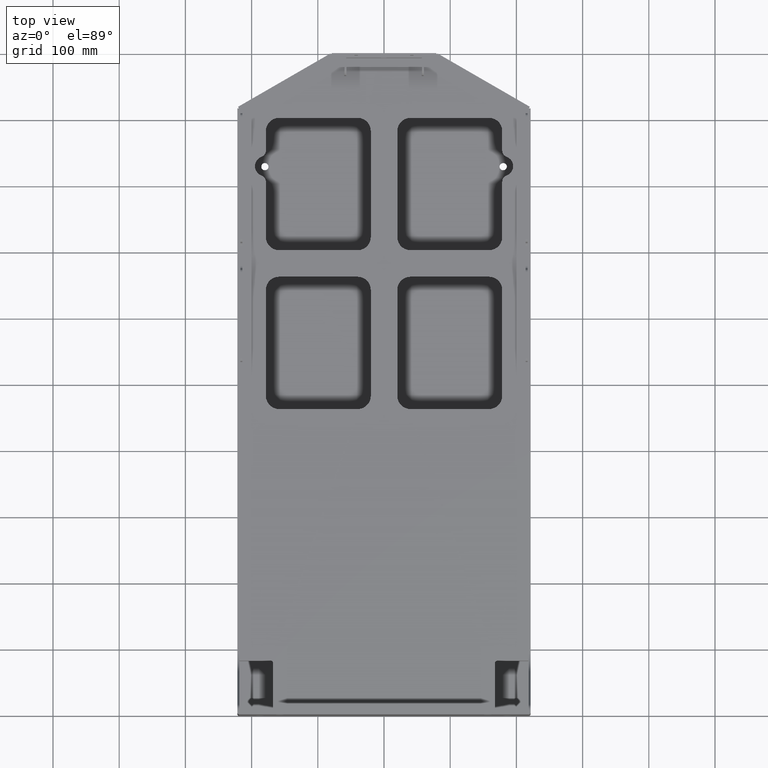
[diagram: clean part render]
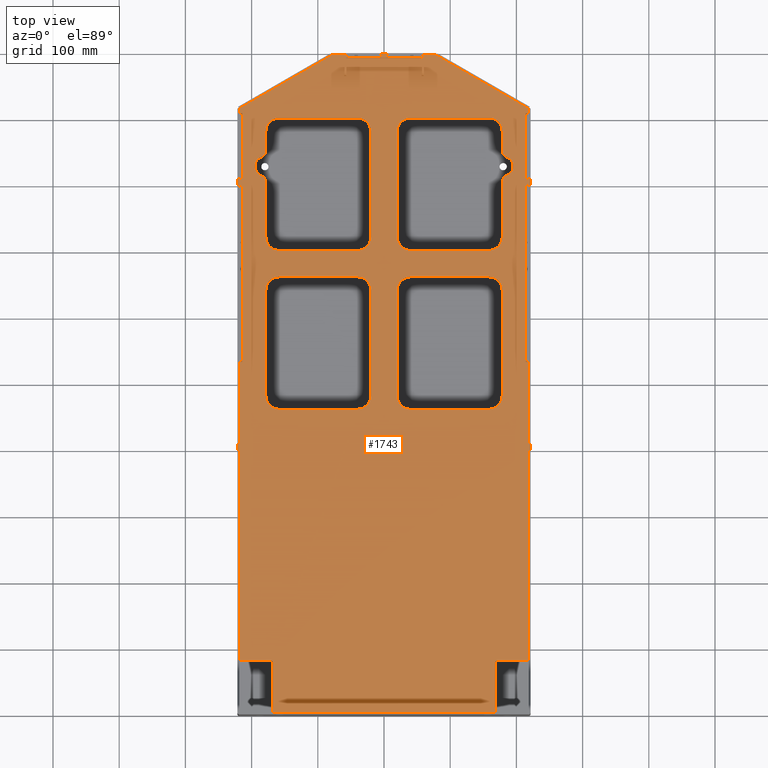
[diagram: same view with one face highlighted and labeled with its STEP entity id]
A machine part, top view. The second image highlights one B-rep face of the part: STEP entity #1743.
In plain terms, the highlighted planar face has unit normal (-0, 0, -1).
Its self-contained STEP definition (entity closure, byte-faithful):
#1364 = EDGE_CURVE ( 'NONE', #1447, #1418, #14542, .T. ) ;
#1418 = VERTEX_POINT ( 'NONE', #14664 ) ;
#1447 = VERTEX_POINT ( 'NONE', #14708 ) ;
#1679 = EDGE_CURVE ( 'NONE', #1700, #1704, #3367, .T. ) ;
#1680 = EDGE_CURVE ( 'NONE', #1681, #1704, #3440, .T. ) ;
#1681 = VERTEX_POINT ( 'NONE', #3364 ) ;
#1682 = ORIENTED_EDGE ( 'NONE', *, *, #1725, .F. ) ;
#1683 = ORIENTED_EDGE ( 'NONE', *, *, #1757, .T. ) ;
#1686 = ORIENTED_EDGE ( 'NONE', *, *, #1750, .F. ) ;
#1687 = VERTEX_POINT ( 'NONE', #3368 ) ;
#1695 = VERTEX_POINT ( 'NONE', #3405 ) ;
#1696 = VERTEX_POINT ( 'NONE', #3436 ) ;
#1699 = ORIENTED_EDGE ( 'NONE', *, *, #1364, .F. ) ;
#1700 = VERTEX_POINT ( 'NONE', #3407 ) ;
#1701 = EDGE_CURVE ( 'NONE', #1722, #1783, #3394, .T. ) ;
#1702 = ORIENTED_EDGE ( 'NONE', *, *, #1679, .T. ) ;
#1703 = VERTEX_POINT ( 'NONE', #3399 ) ;
#1704 = VERTEX_POINT ( 'NONE', #3398 ) ;
#1705 = EDGE_CURVE ( 'NONE', #1681, #1726, #3422, .T. ) ;
#1706 = ORIENTED_EDGE ( 'NONE', *, *, #1701, .F. ) ;
#1707 = EDGE_CURVE ( 'NONE', #1722, #1749, #3267, .T. ) ;
#1708 = EDGE_CURVE ( 'NONE', #1729, #1726, #3193, .T. ) ;
#1709 = ORIENTED_EDGE ( 'NONE', *, *, #1755, .F. ) ;
#1710 = EDGE_CURVE ( 'NONE', #1740, #1797, #3556, .T. ) ;
#1711 = ORIENTED_EDGE ( 'NONE', *, *, #1720, .F. ) ;
#1712 = VERTEX_POINT ( 'NONE', #3528 ) ;
#1713 = VERTEX_POINT ( 'NONE', #3465 ) ;
#1714 = EDGE_CURVE ( 'NONE', #1756, #1797, #3567, .T. ) ;
#1715 = EDGE_CURVE ( 'NONE', #1713, #1712, #3612, .T. ) ;
#1716 = EDGE_CURVE ( 'NONE', #1756, #1717, #3617, .T. ) ;
#1717 = VERTEX_POINT ( 'NONE', #3594 ) ;
#1718 = ORIENTED_EDGE ( 'NONE', *, *, #1724, .F. ) ;
#1719 = ORIENTED_EDGE ( 'NONE', *, *, #1716, .T. ) ;
#1720 = EDGE_CURVE ( 'NONE', #1713, #1717, #3613, .T. ) ;
#1721 = ORIENTED_EDGE ( 'NONE', *, *, #1727, .T. ) ;
#1722 = VERTEX_POINT ( 'NONE', #3619 ) ;
#1723 = EDGE_LOOP ( 'NONE', ( #1782, #1785, #1706, #1779, #1682, #1702, #1778, #1780, #1772, #1683, #1774, #1771, #1699 ) ) ;
#1724 = EDGE_CURVE ( 'NONE', #1781, #1712, #3572, .T. ) ;
#1725 = EDGE_CURVE ( 'NONE', #1700, #1749, #3553, .T. ) ;
#1726 = VERTEX_POINT ( 'NONE', #3555 ) ;
#1727 = EDGE_CURVE ( 'NONE', #1781, #1794, #3563, .T. ) ;
#1728 = EDGE_CURVE ( 'NONE', #1784, #1447, #3527, .T. ) ;
#1729 = VERTEX_POINT ( 'NONE', #3526 ) ;
#1740 = VERTEX_POINT ( 'NONE', #3559 ) ;
#1742 = ORIENTED_EDGE ( 'NONE', *, *, #1715, .T. ) ;
#1743 = ADVANCED_FACE ( 'NONE', ( #3521, #3508, #3503, #3498, #3497 ), #3504, .F. ) ;
#1745 = ORIENTED_EDGE ( 'NONE', *, *, #1747, .T. ) ;
#1746 = ORIENTED_EDGE ( 'NONE', *, *, #1748, .F. ) ;
#1747 = EDGE_CURVE ( 'NONE', #1687, #1695, #3502, .T. ) ;
#1748 = EDGE_CURVE ( 'NONE', #1687, #1794, #3456, .T. ) ;
#1749 = VERTEX_POINT ( 'NONE', #3512 ) ;
#1750 = EDGE_CURVE ( 'NONE', #1696, #1695, #3605, .T. ) ;
#1751 = ORIENTED_EDGE ( 'NONE', *, *, #1710, .T. ) ;
#1752 = ORIENTED_EDGE ( 'NONE', *, *, #1753, .T. ) ;
#1753 = EDGE_CURVE ( 'NONE', #1696, #1795, #3609, .T. ) ;
#1754 = ORIENTED_EDGE ( 'NONE', *, *, #1714, .F. ) ;
#1755 = EDGE_CURVE ( 'NONE', #1740, #1795, #3489, .T. ) ;
#1756 = VERTEX_POINT ( 'NONE', #3490 ) ;
#1757 = EDGE_CURVE ( 'NONE', #1729, #1703, #3450, .T. ) ;
#1759 = ORIENTED_EDGE ( 'NONE', *, *, #1823, .T. ) ;
#1760 = EDGE_CURVE ( 'NONE', #1819, #1876, #3470, .T. ) ;
#1761 = ORIENTED_EDGE ( 'NONE', *, *, #1770, .F. ) ;
#1762 = VERTEX_POINT ( 'NONE', #3475 ) ;
#1763 = VERTEX_POINT ( 'NONE', #3471 ) ;
#1764 = EDGE_CURVE ( 'NONE', #1876, #1875, #3549, .T. ) ;
#1765 = ORIENTED_EDGE ( 'NONE', *, *, #1766, .F. ) ;
#1766 = EDGE_CURVE ( 'NONE', #1762, #1763, #3545, .T. ) ;
#1767 = EDGE_CURVE ( 'NONE', #1875, #1850, #3541, .T. ) ;
#1768 = VERTEX_POINT ( 'NONE', #3550 ) ;
#1769 = ORIENTED_EDGE ( 'NONE', *, *, #1767, .T. ) ;
#1770 = EDGE_CURVE ( 'NONE', #1763, #1850, #3537, .T. ) ;
#1771 = ORIENTED_EDGE ( 'NONE', *, *, #1775, .T. ) ;
#1772 = ORIENTED_EDGE ( 'NONE', *, *, #1708, .F. ) ;
#1773 = EDGE_CURVE ( 'NONE', #1776, #1703, #3591, .T. ) ;
#1774 = ORIENTED_EDGE ( 'NONE', *, *, #1773, .F. ) ;
#1775 = EDGE_CURVE ( 'NONE', #1776, #1418, #3535, .T. ) ;
#1776 = VERTEX_POINT ( 'NONE', #3585 ) ;
#1778 = ORIENTED_EDGE ( 'NONE', *, *, #1680, .F. ) ;
#1779 = ORIENTED_EDGE ( 'NONE', *, *, #1707, .T. ) ;
#1780 = ORIENTED_EDGE ( 'NONE', *, *, #1705, .T. ) ;
#1781 = VERTEX_POINT ( 'NONE', #3587 ) ;
#1782 = ORIENTED_EDGE ( 'NONE', *, *, #1728, .F. ) ;
#1783 = VERTEX_POINT ( 'NONE', #3579 ) ;
#1784 = VERTEX_POINT ( 'NONE', #3577 ) ;
#1785 = ORIENTED_EDGE ( 'NONE', *, *, #1786, .T. ) ;
#1786 = EDGE_CURVE ( 'NONE', #1784, #1783, #3416, .T. ) ;
#1787 = EDGE_LOOP ( 'NONE', ( #1870, #1835, #1867, #1863, #1862, #1802, #1806, #1829 ) ) ;
#1791 = EDGE_LOOP ( 'NONE', ( #1746, #1745, #1686, #1752, #1709, #1751, #1754, #1719, #1711, #1742, #1718, #1721 ) ) ;
#1794 = VERTEX_POINT ( 'NONE', #3652 ) ;
#1795 = VERTEX_POINT ( 'NONE', #3751 ) ;
#1797 = VERTEX_POINT ( 'NONE', #3688 ) ;
#1798 = VERTEX_POINT ( 'NONE', #3734 ) ;
#1799 = VERTEX_POINT ( 'NONE', #3769 ) ;
#1800 = EDGE_CURVE ( 'NONE', #1799, #1798, #3771, .T. ) ;
#1801 = ORIENTED_EDGE ( 'NONE', *, *, #1852, .F. ) ;
#1802 = ORIENTED_EDGE ( 'NONE', *, *, #1830, .T. ) ;
#1803 = EDGE_CURVE ( 'NONE', #1804, #1882, #3689, .T. ) ;
#1804 = VERTEX_POINT ( 'NONE', #3776 ) ;
#1805 = VERTEX_POINT ( 'NONE', #3770 ) ;
#1806 = ORIENTED_EDGE ( 'NONE', *, *, #1803, .F. ) ;
#1807 = ORIENTED_EDGE ( 'NONE', *, *, #1895, .T. ) ;
#1808 = ORIENTED_EDGE ( 'NONE', *, *, #1837, .F. ) ;
#1809 = EDGE_LOOP ( 'NONE', ( #1808, #1810, #1801, #1868, #1826, #1857, #1902, #1820 ) ) ;
#1810 = ORIENTED_EDGE ( 'NONE', *, *, #1813, .T. ) ;
#1811 = VERTEX_POINT ( 'NONE', #3647 ) ;
#1812 = VERTEX_POINT ( 'NONE', #3747 ) ;
#1813 = EDGE_CURVE ( 'NONE', #1827, #1812, #3752, .T. ) ;
#1814 = ORIENTED_EDGE ( 'NONE', *, *, #2071, .F. ) ;
#1815 = VERTEX_POINT ( 'NONE', #3748 ) ;
#1816 = ORIENTED_EDGE ( 'NONE', *, *, #1831, .T. ) ;
#1817 = EDGE_CURVE ( 'NONE', #1879, #1762, #3777, .T. ) ;
#1818 = EDGE_CURVE ( 'NONE', #1901, #1839, #3650, .T. ) ;
#1819 = VERTEX_POINT ( 'NONE', #3696 ) ;
#1820 = ORIENTED_EDGE ( 'NONE', *, *, #1903, .T. ) ;
#1821 = ORIENTED_EDGE ( 'NONE', *, *, #1818, .T. ) ;
#1822 = EDGE_CURVE ( 'NONE', #1860, #1839, #3667, .T. ) ;
#1823 = EDGE_CURVE ( 'NONE', #1861, #1819, #3738, .T. ) ;
#1824 = EDGE_CURVE ( 'NONE', #1815, #1894, #3733, .T. ) ;
#1825 = VERTEX_POINT ( 'NONE', #3731 ) ;
#1826 = ORIENTED_EDGE ( 'NONE', *, *, #1869, .F. ) ;
#1827 = VERTEX_POINT ( 'NONE', #3651 ) ;
#1828 = VERTEX_POINT ( 'NONE', #3728 ) ;
#1829 = ORIENTED_EDGE ( 'NONE', *, *, #1881, .T. ) ;
#1830 = EDGE_CURVE ( 'NONE', #1865, #1882, #3709, .T. ) ;
#1831 = EDGE_CURVE ( 'NONE', #1879, #1805, #3654, .T. ) ;
#1832 = VERTEX_POINT ( 'NONE', #3665 ) ;
#1833 = EDGE_CURVE ( 'NONE', #2090, #1918, #3697, .T. ) ;
#1834 = ORIENTED_EDGE ( 'NONE', *, *, #1764, .T. ) ;
#1835 = ORIENTED_EDGE ( 'NONE', *, *, #1871, .T. ) ;
#1836 = EDGE_CURVE ( 'NONE', #1838, #1864, #3660, .T. ) ;
#1837 = EDGE_CURVE ( 'NONE', #1827, #1828, #3758, .T. ) ;
#1838 = VERTEX_POINT ( 'NONE', #3756 ) ;
#1839 = VERTEX_POINT ( 'NONE', #3716 ) ;
#1840 = VERTEX_POINT ( 'NONE', #3713 ) ;
#1841 = ORIENTED_EDGE ( 'NONE', *, *, #1890, .T. ) ;
#1842 = EDGE_CURVE ( 'NONE', #1843, #1927, #3743, .T. ) ;
#1843 = VERTEX_POINT ( 'NONE', #3745 ) ;
#1844 = VERTEX_POINT ( 'NONE', #3744 ) ;
#1845 = EDGE_CURVE ( 'NONE', #1891, #1925, #3627, .T. ) ;
#1846 = VERTEX_POINT ( 'NONE', #3629 ) ;
#1847 = EDGE_CURVE ( 'NONE', #1891, #1844, #3621, .T. ) ;
#1848 = ORIENTED_EDGE ( 'NONE', *, *, #1760, .T. ) ;
#1849 = ORIENTED_EDGE ( 'NONE', *, *, #1874, .T. ) ;
#1850 = VERTEX_POINT ( 'NONE', #3622 ) ;
#1851 = VERTEX_POINT ( 'NONE', #3642 ) ;
#1852 = EDGE_CURVE ( 'NONE', #1811, #1812, #3628, .T. ) ;
#1853 = VERTEX_POINT ( 'NONE', #3640 ) ;
#1854 = VERTEX_POINT ( 'NONE', #3639 ) ;
#1855 = EDGE_CURVE ( 'NONE', #1811, #1851, #3623, .T. ) ;
#1856 = VERTEX_POINT ( 'NONE', #3634 ) ;
#1857 = ORIENTED_EDGE ( 'NONE', *, *, #1884, .T. ) ;
#1858 = ORIENTED_EDGE ( 'NONE', *, *, #1824, .T. ) ;
#1859 = ORIENTED_EDGE ( 'NONE', *, *, #1822, .F. ) ;
#1860 = VERTEX_POINT ( 'NONE', #3753 ) ;
#1861 = VERTEX_POINT ( 'NONE', #3635 ) ;
#1862 = ORIENTED_EDGE ( 'NONE', *, *, #1883, .F. ) ;
#1863 = ORIENTED_EDGE ( 'NONE', *, *, #1880, .T. ) ;
#1864 = VERTEX_POINT ( 'NONE', #3631 ) ;
#1865 = VERTEX_POINT ( 'NONE', #3643 ) ;
#1866 = VERTEX_POINT ( 'NONE', #3727 ) ;
#1867 = ORIENTED_EDGE ( 'NONE', *, *, #1836, .F. ) ;
#1868 = ORIENTED_EDGE ( 'NONE', *, *, #1855, .T. ) ;
#1869 = EDGE_CURVE ( 'NONE', #1854, #1851, #3723, .T. ) ;
#1870 = ORIENTED_EDGE ( 'NONE', *, *, #1873, .F. ) ;
#1871 = EDGE_CURVE ( 'NONE', #1825, #1864, #3724, .T. ) ;
#1872 = EDGE_LOOP ( 'NONE', ( #1821, #1859, #1899, #1877, #1849, #1759, #1848, #1834, #1769, #1761, #1765, #1896, #1816, #1807, #1893, #1904, #1858, #1814, #2105, #2083, #2073, #2082, #2108, #2107, #1922, #1929, #1928, #1934, #1889, #1841, #1885, #1905, #1908, #1911, #1963, #2097, #2100, #2086, #2089, #2099, #2085, #2076, #1931, #2075, #2060, #2067, #1933, #2023, #1915, #2070, #1912, #1920, #1897, #2112, #2005, #2008 ) ) ;
#1873 = EDGE_CURVE ( 'NONE', #1825, #1866, #3726, .T. ) ;
#1874 = EDGE_CURVE ( 'NONE', #1799, #1861, #3684, .T. ) ;
#1875 = VERTEX_POINT ( 'NONE', #3686 ) ;
#1876 = VERTEX_POINT ( 'NONE', #3685 ) ;
#1877 = ORIENTED_EDGE ( 'NONE', *, *, #1800, .F. ) ;
#1878 = EDGE_CURVE ( 'NONE', #1860, #1798, #3767, .T. ) ;
#1879 = VERTEX_POINT ( 'NONE', #3676 ) ;
#1880 = EDGE_CURVE ( 'NONE', #1838, #1840, #3677, .T. ) ;
#1881 = EDGE_CURVE ( 'NONE', #1804, #1866, #3673, .T. ) ;
#1882 = VERTEX_POINT ( 'NONE', #3678 ) ;
#1883 = EDGE_CURVE ( 'NONE', #1865, #1840, #3395, .T. ) ;
#1884 = EDGE_CURVE ( 'NONE', #1854, #1853, #3189, .T. ) ;
#1885 = ORIENTED_EDGE ( 'NONE', *, *, #1842, .T. ) ;
#1886 = EDGE_CURVE ( 'NONE', #1888, #1927, #3804, .T. ) ;
#1887 = EDGE_CURVE ( 'NONE', #1959, #2000, #3825, .T. ) ;
#1888 = VERTEX_POINT ( 'NONE', #3821 ) ;
#1889 = ORIENTED_EDGE ( 'NONE', *, *, #1887, .T. ) ;
#1890 = EDGE_CURVE ( 'NONE', #2000, #1843, #3932, .T. ) ;
#1891 = VERTEX_POINT ( 'NONE', #3800 ) ;
#1892 = EDGE_CURVE ( 'NONE', #1925, #1888, #3819, .T. ) ;
#1893 = ORIENTED_EDGE ( 'NONE', *, *, #1913, .T. ) ;
#1894 = VERTEX_POINT ( 'NONE', #3818 ) ;
#1895 = EDGE_CURVE ( 'NONE', #1805, #1832, #3820, .T. ) ;
#1896 = ORIENTED_EDGE ( 'NONE', *, *, #1817, .F. ) ;
#1897 = ORIENTED_EDGE ( 'NONE', *, *, #1833, .T. ) ;
#1898 = EDGE_CURVE ( 'NONE', #1768, #1815, #3814, .T. ) ;
#1899 = ORIENTED_EDGE ( 'NONE', *, *, #1878, .T. ) ;
#1900 = EDGE_CURVE ( 'NONE', #1856, #1853, #3808, .T. ) ;
#1901 = VERTEX_POINT ( 'NONE', #3881 ) ;
#1902 = ORIENTED_EDGE ( 'NONE', *, *, #1900, .F. ) ;
#1903 = EDGE_CURVE ( 'NONE', #1856, #1828, #3809, .T. ) ;
#1904 = ORIENTED_EDGE ( 'NONE', *, *, #1898, .T. ) ;
#1905 = ORIENTED_EDGE ( 'NONE', *, *, #1886, .F. ) ;
#1906 = VERTEX_POINT ( 'NONE', #3882 ) ;
#1907 = VERTEX_POINT ( 'NONE', #3850 ) ;
#1908 = ORIENTED_EDGE ( 'NONE', *, *, #1892, .F. ) ;
#1909 = VERTEX_POINT ( 'NONE', #3799 ) ;
#1910 = VERTEX_POINT ( 'NONE', #3846 ) ;
#1911 = ORIENTED_EDGE ( 'NONE', *, *, #1845, .F. ) ;
#1912 = ORIENTED_EDGE ( 'NONE', *, *, #1917, .T. ) ;
#1913 = EDGE_CURVE ( 'NONE', #1832, #1768, #3931, .T. ) ;
#1914 = VERTEX_POINT ( 'NONE', #3845 ) ;
#1915 = ORIENTED_EDGE ( 'NONE', *, *, #2024, .T. ) ;
#1916 = EDGE_CURVE ( 'NONE', #2096, #2022, #3927, .T. ) ;
#1917 = EDGE_CURVE ( 'NONE', #2022, #2110, #3923, .T. ) ;
#1918 = VERTEX_POINT ( 'NONE', #3919 ) ;
#1919 = EDGE_CURVE ( 'NONE', #2110, #2090, #3915, .T. ) ;
#1920 = ORIENTED_EDGE ( 'NONE', *, *, #1919, .T. ) ;
#1921 = EDGE_CURVE ( 'NONE', #1924, #1959, #3909, .T. ) ;
#1922 = ORIENTED_EDGE ( 'NONE', *, *, #2084, .F. ) ;
#1923 = EDGE_CURVE ( 'NONE', #2040, #1935, #3903, .T. ) ;
#1924 = VERTEX_POINT ( 'NONE', #3911 ) ;
#1925 = VERTEX_POINT ( 'NONE', #3904 ) ;
#1926 = EDGE_CURVE ( 'NONE', #2040, #1924, #3833, .T. ) ;
#1927 = VERTEX_POINT ( 'NONE', #3905 ) ;
#1928 = ORIENTED_EDGE ( 'NONE', *, *, #1926, .T. ) ;
#1929 = ORIENTED_EDGE ( 'NONE', *, *, #1923, .F. ) ;
#1930 = EDGE_CURVE ( 'NONE', #2061, #2068, #3836, .T. ) ;
#1931 = ORIENTED_EDGE ( 'NONE', *, *, #2077, .T. ) ;
#1932 = EDGE_CURVE ( 'NONE', #1965, #2031, #3834, .T. ) ;
#1933 = ORIENTED_EDGE ( 'NONE', *, *, #2025, .F. ) ;
#1934 = ORIENTED_EDGE ( 'NONE', *, *, #1921, .T. ) ;
#1935 = VERTEX_POINT ( 'NONE', #3916 ) ;
#1959 = VERTEX_POINT ( 'NONE', #3979 ) ;
#1963 = ORIENTED_EDGE ( 'NONE', *, *, #1847, .T. ) ;
#1964 = EDGE_CURVE ( 'NONE', #1846, #1844, #3976, .T. ) ;
#1965 = VERTEX_POINT ( 'NONE', #3969 ) ;
#2000 = VERTEX_POINT ( 'NONE', #4180 ) ;
#2003 = VERTEX_POINT ( 'NONE', #4201 ) ;
#2004 = VERTEX_POINT ( 'NONE', #4101 ) ;
#2005 = ORIENTED_EDGE ( 'NONE', *, *, #2113, .T. ) ;
#2006 = EDGE_CURVE ( 'NONE', #1901, #2004, #4194, .T. ) ;
#2008 = ORIENTED_EDGE ( 'NONE', *, *, #2006, .F. ) ;
#2022 = VERTEX_POINT ( 'NONE', #4136 ) ;
#2023 = ORIENTED_EDGE ( 'NONE', *, *, #2079, .F. ) ;
#2024 = EDGE_CURVE ( 'NONE', #2088, #2096, #4134, .T. ) ;
#2025 = EDGE_CURVE ( 'NONE', #2078, #2061, #4205, .T. ) ;
#2026 = EDGE_CURVE ( 'NONE', #2081, #2072, #4155, .T. ) ;
#2027 = EDGE_CURVE ( 'NONE', #2072, #2069, #4150, .T. ) ;
#2028 = EDGE_CURVE ( 'NONE', #1906, #1914, #4145, .T. ) ;
#2029 = VERTEX_POINT ( 'NONE', #4151 ) ;
#2030 = EDGE_CURVE ( 'NONE', #1906, #1909, #4173, .T. ) ;
#2031 = VERTEX_POINT ( 'NONE', #4146 ) ;
#2032 = EDGE_CURVE ( 'NONE', #1909, #2029, #4168, .T. ) ;
#2039 = VERTEX_POINT ( 'NONE', #4098 ) ;
#2040 = VERTEX_POINT ( 'NONE', #4162 ) ;
#2052 = VERTEX_POINT ( 'NONE', #4211 ) ;
#2060 = ORIENTED_EDGE ( 'NONE', *, *, #2103, .T. ) ;
#2061 = VERTEX_POINT ( 'NONE', #4234 ) ;
#2067 = ORIENTED_EDGE ( 'NONE', *, *, #1930, .F. ) ;
#2068 = VERTEX_POINT ( 'NONE', #4350 ) ;
#2069 = VERTEX_POINT ( 'NONE', #4360 ) ;
#2070 = ORIENTED_EDGE ( 'NONE', *, *, #1916, .T. ) ;
#2071 = EDGE_CURVE ( 'NONE', #2069, #1894, #4359, .T. ) ;
#2072 = VERTEX_POINT ( 'NONE', #4349 ) ;
#2073 = ORIENTED_EDGE ( 'NONE', *, *, #2106, .T. ) ;
#2074 = EDGE_CURVE ( 'NONE', #2104, #2052, #4365, .T. ) ;
#2075 = ORIENTED_EDGE ( 'NONE', *, *, #1932, .T. ) ;
#2076 = ORIENTED_EDGE ( 'NONE', *, *, #2032, .T. ) ;
#2077 = EDGE_CURVE ( 'NONE', #2029, #1965, #4366, .T. ) ;
#2078 = VERTEX_POINT ( 'NONE', #4233 ) ;
#2079 = EDGE_CURVE ( 'NONE', #2088, #2078, #4224, .T. ) ;
#2080 = EDGE_CURVE ( 'NONE', #2039, #2052, #4220, .T. ) ;
#2081 = VERTEX_POINT ( 'NONE', #4219 ) ;
#2082 = ORIENTED_EDGE ( 'NONE', *, *, #2109, .F. ) ;
#2083 = ORIENTED_EDGE ( 'NONE', *, *, #2026, .F. ) ;
#2084 = EDGE_CURVE ( 'NONE', #1935, #2104, #4270, .T. ) ;
#2085 = ORIENTED_EDGE ( 'NONE', *, *, #2030, .T. ) ;
#2086 = ORIENTED_EDGE ( 'NONE', *, *, #2101, .F. ) ;
#2087 = EDGE_CURVE ( 'NONE', #1914, #1910, #4288, .T. ) ;
#2088 = VERTEX_POINT ( 'NONE', #4289 ) ;
#2089 = ORIENTED_EDGE ( 'NONE', *, *, #2087, .F. ) ;
#2090 = VERTEX_POINT ( 'NONE', #4284 ) ;
#2096 = VERTEX_POINT ( 'NONE', #4326 ) ;
#2097 = ORIENTED_EDGE ( 'NONE', *, *, #1964, .F. ) ;
#2098 = EDGE_CURVE ( 'NONE', #1846, #1907, #4265, .T. ) ;
#2099 = ORIENTED_EDGE ( 'NONE', *, *, #2028, .F. ) ;
#2100 = ORIENTED_EDGE ( 'NONE', *, *, #2098, .T. ) ;
#2101 = EDGE_CURVE ( 'NONE', #1910, #1907, #4316, .T. ) ;
#2102 = VERTEX_POINT ( 'NONE', #4318 ) ;
#2103 = EDGE_CURVE ( 'NONE', #2031, #2068, #4311, .T. ) ;
#2104 = VERTEX_POINT ( 'NONE', #4310 ) ;
#2105 = ORIENTED_EDGE ( 'NONE', *, *, #2027, .F. ) ;
#2106 = EDGE_CURVE ( 'NONE', #2081, #2102, #4306, .T. ) ;
#2107 = ORIENTED_EDGE ( 'NONE', *, *, #2074, .F. ) ;
#2108 = ORIENTED_EDGE ( 'NONE', *, *, #2080, .T. ) ;
#2109 = EDGE_CURVE ( 'NONE', #2039, #2102, #4304, .T. ) ;
#2110 = VERTEX_POINT ( 'NONE', #4305 ) ;
#2112 = ORIENTED_EDGE ( 'NONE', *, *, #2115, .F. ) ;
#2113 = EDGE_CURVE ( 'NONE', #2003, #2004, #4312, .T. ) ;
#2115 = EDGE_CURVE ( 'NONE', #2003, #1918, #4300, .T. ) ;
#3115 = CARTESIAN_POINT ( 'NONE',  ( 158.4999999999998900, 722.9999999999998900, 39.99999999999997900 ) ) ;
#3185 = CARTESIAN_POINT ( 'NONE',  ( 19.99999999999999600, 902.9999999999995500, 39.99999999999994300 ) ) ;
#3189 = CIRCLE ( 'NONE', #3190, 19.99999999999998900 ) ;
#3190 = AXIS2_PLACEMENT_3D ( 'NONE', #3536, #3581, #3586 ) ;
#3191 = DIRECTION ( 'NONE',  ( -1.000000000000000000, 0.0000000000000000000, 0.0000000000000000000 ) ) ;
#3192 = DIRECTION ( 'NONE',  ( 0.0000000000000000000, 2.020952849512982500E-016, -1.000000000000000000 ) ) ;
#3193 = LINE ( 'NONE', #3185, #3272 ) ;
#3195 = AXIS2_PLACEMENT_3D ( 'NONE', #3115, #3192, #3191 ) ;
#3267 = CIRCLE ( 'NONE', #3195, 19.99999999999998900 ) ;
#3272 = VECTOR ( 'NONE', #3568, 1000.000000000000000 ) ;
#3325 = AXIS2_PLACEMENT_3D ( 'NONE', #3443, #3442, #3441 ) ;
#3364 = CARTESIAN_POINT ( 'NONE',  ( 19.99999999999999300, 882.9999999999993200, 39.99999999999994300 ) ) ;
#3367 = CIRCLE ( 'NONE', #3325, 20.00000000000000000 ) ;
#3368 = CARTESIAN_POINT ( 'NONE',  ( -178.4999999999998900, 806.4893641089818200, 39.99999999999989300 ) ) ;
#3384 = DIRECTION ( 'NONE',  ( -1.000000000000000000, 0.0000000000000000000, 0.0000000000000000000 ) ) ;
#3385 = DIRECTION ( 'NONE',  ( 0.0000000000000000000, 2.020952849512982500E-016, -1.000000000000000000 ) ) ;
#3386 = CARTESIAN_POINT ( 'NONE',  ( 40.00000000000000000, 882.9999999999997700, 39.99999999999996400 ) ) ;
#3387 = AXIS2_PLACEMENT_3D ( 'NONE', #3386, #3385, #3384 ) ;
#3388 = AXIS2_PLACEMENT_3D ( 'NONE', #3389, #3397, #3396 ) ;
#3389 = CARTESIAN_POINT ( 'NONE',  ( 188.4999999999999100, 806.4893641089820400, 39.99999999999995000 ) ) ;
#3390 = DIRECTION ( 'NONE',  ( -2.428612866367532100E-017, 1.000000000000000000, -1.621966450038316100E-016 ) ) ;
#3391 = VECTOR ( 'NONE', #3390, 1000.000000000000000 ) ;
#3393 = CARTESIAN_POINT ( 'NONE',  ( 178.4999999999998900, 902.9999999999997700, 40.00000000000005000 ) ) ;
#3394 = LINE ( 'NONE', #3393, #3391 ) ;
#3395 = LINE ( 'NONE', #3421, #3592 ) ;
#3396 = DIRECTION ( 'NONE',  ( -1.000000000000000000, 0.0000000000000000000, 0.0000000000000000000 ) ) ;
#3397 = DIRECTION ( 'NONE',  ( -0.0000000000000000000, -2.020952849512982500E-016, 1.000000000000000000 ) ) ;
#3398 = CARTESIAN_POINT ( 'NONE',  ( 20.00000000000000400, 722.9999999999998900, 39.99999999999997200 ) ) ;
#3399 = CARTESIAN_POINT ( 'NONE',  ( 178.4999999999998900, 882.9999999999997700, 39.99999999999996400 ) ) ;
#3405 = CARTESIAN_POINT ( 'NONE',  ( -185.0999999999999900, 815.8936184653890700, 39.99999999999984400 ) ) ;
#3407 = CARTESIAN_POINT ( 'NONE',  ( 39.99999999999999300, 702.9999999999998900, 39.99999999999997900 ) ) ;
#3416 = CIRCLE ( 'NONE', #3388, 10.00000000000000900 ) ;
#3421 = CARTESIAN_POINT ( 'NONE',  ( -178.5000000000000000, 662.9999999999998900, 39.99999999999998600 ) ) ;
#3422 = CIRCLE ( 'NONE', #3387, 20.00000000000000000 ) ;
#3436 = CARTESIAN_POINT ( 'NONE',  ( -185.0999999999999900, 844.1063815346101400, 39.99999999999987200 ) ) ;
#3437 = DIRECTION ( 'NONE',  ( 2.428612866367532100E-017, -1.000000000000000000, 1.621966450038316100E-016 ) ) ;
#3438 = VECTOR ( 'NONE', #3437, 1000.000000000000000 ) ;
#3439 = CARTESIAN_POINT ( 'NONE',  ( 19.99999999999999600, 902.9999999999995500, 39.99999999999994300 ) ) ;
#3440 = LINE ( 'NONE', #3439, #3438 ) ;
#3441 = DIRECTION ( 'NONE',  ( -1.000000000000000000, 0.0000000000000000000, 0.0000000000000000000 ) ) ;
#3442 = DIRECTION ( 'NONE',  ( 0.0000000000000000000, 2.020952849512982500E-016, -1.000000000000000000 ) ) ;
#3443 = CARTESIAN_POINT ( 'NONE',  ( 39.99999999999998600, 722.9999999999998900, 39.99999999999997900 ) ) ;
#3450 = CIRCLE ( 'NONE', #3495, 19.99999999999998900 ) ;
#3451 = DIRECTION ( 'NONE',  ( -1.000000000000000000, 0.0000000000000000000, 0.0000000000000000000 ) ) ;
#3452 = DIRECTION ( 'NONE',  ( -0.0000000000000000000, -2.020952849512982500E-016, 1.000000000000000000 ) ) ;
#3453 = CARTESIAN_POINT ( 'NONE',  ( -188.4999999999999100, 806.4893641089820400, 39.99999999999990800 ) ) ;
#3454 = VECTOR ( 'NONE', #3610, 1000.000000000000000 ) ;
#3455 = CARTESIAN_POINT ( 'NONE',  ( -178.4999999999999100, 702.9999999999998900, 39.99999999999997200 ) ) ;
#3456 = LINE ( 'NONE', #3455, #3454 ) ;
#3457 = AXIS2_PLACEMENT_3D ( 'NONE', #3608, #3607, #3606 ) ;
#3458 = DIRECTION ( 'NONE',  ( -1.000000000000000000, -1.214306433183765000E-017, 0.0000000000000000000 ) ) ;
#3459 = DIRECTION ( 'NONE',  ( -2.454056046324675600E-033, 2.020952849512982200E-016, -1.000000000000000000 ) ) ;
#3460 = CARTESIAN_POINT ( 'NONE',  ( -218.4999999999998900, 997.9999999999993200, 40.00000000000002100 ) ) ;
#3461 = AXIS2_PLACEMENT_3D ( 'NONE', #3453, #3452, #3451 ) ;
#3465 = CARTESIAN_POINT ( 'NONE',  ( -20.00000000000000400, 722.9999999999998900, 40.00000000000001400 ) ) ;
#3466 = DIRECTION ( 'NONE',  ( 0.0000000000000000000, 2.020952849512982500E-016, -1.000000000000000000 ) ) ;
#3467 = DIRECTION ( 'NONE',  ( -2.428612866367532100E-017, 1.000000000000000000, -1.621966450038316100E-016 ) ) ;
#3468 = VECTOR ( 'NONE', #3467, 1000.000000000000000 ) ;
#3469 = CARTESIAN_POINT ( 'NONE',  ( 221.4999999999999100, 400.9999999999998900, 39.99999999999999300 ) ) ;
#3470 = LINE ( 'NONE', #3469, #3468 ) ;
#3471 = CARTESIAN_POINT ( 'NONE',  ( 213.9999999999997700, 573.9999999999998900, 40.00000000000002100 ) ) ;
#3472 = DIRECTION ( 'NONE',  ( -1.000000000000000000, 0.0000000000000000000, 0.0000000000000000000 ) ) ;
#3473 = DIRECTION ( 'NONE',  ( 0.0000000000000000000, 2.020952849512982500E-016, -1.000000000000000000 ) ) ;
#3474 = CARTESIAN_POINT ( 'NONE',  ( 158.4999999999998300, 882.9999999999997700, 40.00000000000000700 ) ) ;
#3475 = CARTESIAN_POINT ( 'NONE',  ( 213.9999999999997700, 578.9999999999998900, 40.00000000000003600 ) ) ;
#3478 = DIRECTION ( 'NONE',  ( 0.0000000000000000000, 2.020952849512982500E-016, -1.000000000000000000 ) ) ;
#3479 = CARTESIAN_POINT ( 'NONE',  ( -40.00000000000000700, 722.9999999999998900, 39.99999999999997900 ) ) ;
#3480 = DIRECTION ( 'NONE',  ( -1.000000000000000000, -1.214306433183765000E-017, 0.0000000000000000000 ) ) ;
#3481 = VECTOR ( 'NONE', #3480, 1000.000000000000000 ) ;
#3482 = DIRECTION ( 'NONE',  ( 1.000000000000000000, 0.0000000000000000000, 0.0000000000000000000 ) ) ;
#3483 = DIRECTION ( 'NONE',  ( 0.0000000000000000000, -2.020952849512982500E-016, 1.000000000000000000 ) ) ;
#3484 = CARTESIAN_POINT ( 'NONE',  ( 179.9999999999998600, 829.9999999999998900, 40.00000000000002100 ) ) ;
#3486 = DIRECTION ( 'NONE',  ( 2.428612866367532100E-017, -1.000000000000000000, 1.621966450038316100E-016 ) ) ;
#3487 = VECTOR ( 'NONE', #3486, 1000.000000000000000 ) ;
#3488 = CARTESIAN_POINT ( 'NONE',  ( -178.4999999999999100, 702.9999999999998900, 39.99999999999997200 ) ) ;
#3489 = LINE ( 'NONE', #3488, #3487 ) ;
#3490 = CARTESIAN_POINT ( 'NONE',  ( -40.00000000000000700, 902.9999999999993200, 39.99999999999995700 ) ) ;
#3491 = DIRECTION ( 'NONE',  ( -1.000000000000000000, 0.0000000000000000000, 0.0000000000000000000 ) ) ;
#3492 = DIRECTION ( 'NONE',  ( -0.0000000000000000000, -2.020952849512982500E-016, 1.000000000000000000 ) ) ;
#3493 = CARTESIAN_POINT ( 'NONE',  ( -188.4999999999998900, 853.5106358910170500, 40.00000000000002100 ) ) ;
#3494 = AXIS2_PLACEMENT_3D ( 'NONE', #3493, #3492, #3491 ) ;
#3495 = AXIS2_PLACEMENT_3D ( 'NONE', #3474, #3473, #3472 ) ;
#3497 = FACE_OUTER_BOUND ( 'NONE', #1872, .T. ) ;
#3498 = FACE_BOUND ( 'NONE', #1809, .T. ) ;
#3502 = CIRCLE ( 'NONE', #3461, 10.00000000000000900 ) ;
#3503 = FACE_BOUND ( 'NONE', #1787, .T. ) ;
#3504 = PLANE ( 'NONE',  #3509 ) ;
#3508 = FACE_BOUND ( 'NONE', #1723, .T. ) ;
#3509 = AXIS2_PLACEMENT_3D ( 'NONE', #3460, #3459, #3458 ) ;
#3512 = CARTESIAN_POINT ( 'NONE',  ( 158.4999999999998300, 702.9999999999998900, 39.99999999999999300 ) ) ;
#3521 = FACE_BOUND ( 'NONE', #1791, .T. ) ;
#3523 = DIRECTION ( 'NONE',  ( 1.000000000000000000, 1.214306433183765000E-017, 0.0000000000000000000 ) ) ;
#3524 = DIRECTION ( 'NONE',  ( -1.000000000000000000, 0.0000000000000000000, 0.0000000000000000000 ) ) ;
#3525 = DIRECTION ( 'NONE',  ( 0.0000000000000000000, 2.020952849512982500E-016, -1.000000000000000000 ) ) ;
#3526 = CARTESIAN_POINT ( 'NONE',  ( 158.4999999999998300, 902.9999999999997700, 39.99999999999997200 ) ) ;
#3527 = CIRCLE ( 'NONE', #3573, 15.00000000000004100 ) ;
#3528 = CARTESIAN_POINT ( 'NONE',  ( -40.00000000000000000, 702.9999999999998900, 39.99999999999997200 ) ) ;
#3529 = AXIS2_PLACEMENT_3D ( 'NONE', #3554, #3525, #3566 ) ;
#3530 = AXIS2_PLACEMENT_3D ( 'NONE', #3479, #3478, #3524 ) ;
#3531 = AXIS2_PLACEMENT_3D ( 'NONE', #3584, #3583, #3582 ) ;
#3532 = DIRECTION ( 'NONE',  ( 1.000000000000000000, -9.232198339148567400E-015, 1.110223024625156500E-016 ) ) ;
#3533 = VECTOR ( 'NONE', #3532, 1000.000000000000000 ) ;
#3534 = CARTESIAN_POINT ( 'NONE',  ( 218.4999999999998000, 573.9999999999998900, 40.00000000000000000 ) ) ;
#3535 = CIRCLE ( 'NONE', #3531, 10.00000000000000900 ) ;
#3536 = CARTESIAN_POINT ( 'NONE',  ( 158.4999999999998300, 642.9999999999998900, 39.99999999999999300 ) ) ;
#3537 = LINE ( 'NONE', #3534, #3533 ) ;
#3538 = DIRECTION ( 'NONE',  ( -2.428612866367532100E-017, 1.000000000000000000, -1.621966450038316100E-016 ) ) ;
#3539 = VECTOR ( 'NONE', #3538, 1000.000000000000000 ) ;
#3540 = CARTESIAN_POINT ( 'NONE',  ( 218.4999999999999100, 2.999999999999891600, 40.00000000000003600 ) ) ;
#3541 = LINE ( 'NONE', #3540, #3539 ) ;
#3542 = DIRECTION ( 'NONE',  ( 2.428612866367532100E-017, -1.000000000000000000, 1.621966450038316100E-016 ) ) ;
#3543 = VECTOR ( 'NONE', #3542, 1000.000000000000000 ) ;
#3544 = CARTESIAN_POINT ( 'NONE',  ( 213.9999999999997700, 573.9999999999998900, 40.00000000000002100 ) ) ;
#3545 = LINE ( 'NONE', #3544, #3543 ) ;
#3546 = DIRECTION ( 'NONE',  ( -1.000000000000000000, -1.214306433183765000E-017, 0.0000000000000000000 ) ) ;
#3547 = VECTOR ( 'NONE', #3546, 1000.000000000000000 ) ;
#3548 = CARTESIAN_POINT ( 'NONE',  ( 218.4999999999998600, 410.9999999999999400, 40.00000000000003600 ) ) ;
#3549 = LINE ( 'NONE', #3548, #3547 ) ;
#3550 = CARTESIAN_POINT ( 'NONE',  ( 221.4999999999998900, 811.0000000000000000, 39.99999999999997900 ) ) ;
#3551 = VECTOR ( 'NONE', #3523, 1000.000000000000000 ) ;
#3552 = CARTESIAN_POINT ( 'NONE',  ( 20.00000000000000400, 702.9999999999998900, 39.99999999999999300 ) ) ;
#3553 = LINE ( 'NONE', #3552, #3551 ) ;
#3554 = CARTESIAN_POINT ( 'NONE',  ( -158.4999999999998900, 722.9999999999998900, 39.99999999999997900 ) ) ;
#3555 = CARTESIAN_POINT ( 'NONE',  ( 39.99999999999999300, 903.0000000000000000, 39.99999999999989300 ) ) ;
#3556 = CIRCLE ( 'NONE', #3593, 19.99999999999998900 ) ;
#3557 = CARTESIAN_POINT ( 'NONE',  ( -20.00000000000000400, 702.9999999999998900, 39.99999999999997900 ) ) ;
#3558 = AXIS2_PLACEMENT_3D ( 'NONE', #3616, #3615, #3614 ) ;
#3559 = CARTESIAN_POINT ( 'NONE',  ( -178.4999999999998900, 882.9999999999997700, 39.99999999999995000 ) ) ;
#3563 = CIRCLE ( 'NONE', #3529, 19.99999999999998900 ) ;
#3564 = VECTOR ( 'NONE', #3574, 1000.000000000000000 ) ;
#3566 = DIRECTION ( 'NONE',  ( -1.000000000000000000, 0.0000000000000000000, 0.0000000000000000000 ) ) ;
#3567 = LINE ( 'NONE', #3618, #3481 ) ;
#3568 = DIRECTION ( 'NONE',  ( -1.000000000000000000, -1.214306433183765000E-017, 0.0000000000000000000 ) ) ;
#3569 = DIRECTION ( 'NONE',  ( 1.000000000000000000, 1.214306433183765000E-017, 0.0000000000000000000 ) ) ;
#3570 = VECTOR ( 'NONE', #3569, 1000.000000000000000 ) ;
#3571 = CARTESIAN_POINT ( 'NONE',  ( -178.4999999999999100, 702.9999999999998900, 39.99999999999997200 ) ) ;
#3572 = LINE ( 'NONE', #3571, #3570 ) ;
#3573 = AXIS2_PLACEMENT_3D ( 'NONE', #3484, #3483, #3482 ) ;
#3574 = DIRECTION ( 'NONE',  ( -2.428612866367532100E-017, 1.000000000000000000, -1.621966450038316100E-016 ) ) ;
#3575 = CARTESIAN_POINT ( 'NONE',  ( -158.4999999999998600, 882.9999999999997700, 39.99999999999991500 ) ) ;
#3576 = DIRECTION ( 'NONE',  ( -1.000000000000000000, -1.214306433183765000E-017, 0.0000000000000000000 ) ) ;
#3577 = CARTESIAN_POINT ( 'NONE',  ( 185.0999999999998000, 815.8936184653893000, 40.00000000000002100 ) ) ;
#3579 = CARTESIAN_POINT ( 'NONE',  ( 178.4999999999998900, 806.4893641089820400, 39.99999999999992200 ) ) ;
#3581 = DIRECTION ( 'NONE',  ( 0.0000000000000000000, 2.020952849512982500E-016, -1.000000000000000000 ) ) ;
#3582 = DIRECTION ( 'NONE',  ( -1.000000000000000000, 0.0000000000000000000, 0.0000000000000000000 ) ) ;
#3583 = DIRECTION ( 'NONE',  ( -0.0000000000000000000, -2.020952849512982500E-016, 1.000000000000000000 ) ) ;
#3584 = CARTESIAN_POINT ( 'NONE',  ( 188.4999999999998900, 853.5106358910168200, 39.99999999999992200 ) ) ;
#3585 = CARTESIAN_POINT ( 'NONE',  ( 178.4999999999998900, 853.5106358910170500, 40.00000000000005000 ) ) ;
#3586 = DIRECTION ( 'NONE',  ( -1.000000000000000000, 0.0000000000000000000, 0.0000000000000000000 ) ) ;
#3587 = CARTESIAN_POINT ( 'NONE',  ( -158.4999999999998900, 702.9999999999998900, 39.99999999999997900 ) ) ;
#3588 = DIRECTION ( 'NONE',  ( -2.428612866367532100E-017, 1.000000000000000000, -1.621966450038316100E-016 ) ) ;
#3589 = VECTOR ( 'NONE', #3588, 1000.000000000000000 ) ;
#3590 = CARTESIAN_POINT ( 'NONE',  ( 178.4999999999998900, 902.9999999999997700, 40.00000000000005000 ) ) ;
#3591 = LINE ( 'NONE', #3590, #3589 ) ;
#3592 = VECTOR ( 'NONE', #3576, 1000.000000000000000 ) ;
#3593 = AXIS2_PLACEMENT_3D ( 'NONE', #3575, #3466, #3611 ) ;
#3594 = CARTESIAN_POINT ( 'NONE',  ( -20.00000000000003200, 882.9999999999998900, 39.99999999999982900 ) ) ;
#3605 = CIRCLE ( 'NONE', #3457, 15.00000000000004100 ) ;
#3606 = DIRECTION ( 'NONE',  ( -1.000000000000000000, 0.0000000000000000000, 0.0000000000000000000 ) ) ;
#3607 = DIRECTION ( 'NONE',  ( 0.0000000000000000000, -2.020952849512982500E-016, 1.000000000000000000 ) ) ;
#3608 = CARTESIAN_POINT ( 'NONE',  ( -179.9999999999999400, 829.9999999999996600, 39.99999999999997900 ) ) ;
#3609 = CIRCLE ( 'NONE', #3494, 10.00000000000000900 ) ;
#3610 = DIRECTION ( 'NONE',  ( 2.428612866367532100E-017, -1.000000000000000000, 1.621966450038316100E-016 ) ) ;
#3611 = DIRECTION ( 'NONE',  ( -1.000000000000000000, 0.0000000000000000000, 0.0000000000000000000 ) ) ;
#3612 = CIRCLE ( 'NONE', #3530, 20.00000000000000400 ) ;
#3613 = LINE ( 'NONE', #3557, #3564 ) ;
#3614 = DIRECTION ( 'NONE',  ( -1.000000000000000000, 0.0000000000000000000, 0.0000000000000000000 ) ) ;
#3615 = DIRECTION ( 'NONE',  ( 0.0000000000000000000, 2.020952849512982500E-016, -1.000000000000000000 ) ) ;
#3616 = CARTESIAN_POINT ( 'NONE',  ( -39.99999999999999300, 882.9999999999995500, 39.99999999999996400 ) ) ;
#3617 = CIRCLE ( 'NONE', #3558, 20.00000000000000400 ) ;
#3618 = CARTESIAN_POINT ( 'NONE',  ( -178.4999999999998900, 902.9999999999997700, 39.99999999999996400 ) ) ;
#3619 = CARTESIAN_POINT ( 'NONE',  ( 178.4999999999998900, 722.9999999999998900, 39.99999999999999300 ) ) ;
#3620 = CARTESIAN_POINT ( 'NONE',  ( -218.4999999999998900, 997.9999999999993200, 40.00000000000002100 ) ) ;
#3621 = LINE ( 'NONE', #3620, #3645 ) ;
#3622 = CARTESIAN_POINT ( 'NONE',  ( 218.4999999999998000, 573.9999999999998900, 40.00000000000000000 ) ) ;
#3623 = CIRCLE ( 'NONE', #3641, 20.00000000000000000 ) ;
#3624 = DIRECTION ( 'NONE',  ( 2.428612866367532100E-017, -1.000000000000000000, 1.621966450038316100E-016 ) ) ;
#3625 = VECTOR ( 'NONE', #3624, 1000.000000000000000 ) ;
#3626 = CARTESIAN_POINT ( 'NONE',  ( -44.50000000000002100, 998.0000000000000000, 39.99999999999988600 ) ) ;
#3627 = LINE ( 'NONE', #3626, #3625 ) ;
#3628 = LINE ( 'NONE', #3630, #3638 ) ;
#3629 = CARTESIAN_POINT ( 'NONE',  ( -218.4999999999998900, 917.5728861020988900, 39.99999999999995000 ) ) ;
#3630 = CARTESIAN_POINT ( 'NONE',  ( 20.00000000000000400, 662.9999999999998900, 39.99999999999997200 ) ) ;
#3631 = CARTESIAN_POINT ( 'NONE',  ( -178.4999999999998900, 482.9999999999998900, 39.99999999999997900 ) ) ;
#3632 = DIRECTION ( 'NONE',  ( -1.000000000000000000, 0.0000000000000000000, 0.0000000000000000000 ) ) ;
#3633 = DIRECTION ( 'NONE',  ( 0.0000000000000000000, 2.020952849512982500E-016, -1.000000000000000000 ) ) ;
#3634 = CARTESIAN_POINT ( 'NONE',  ( 178.4999999999999400, 482.9999999999998900, 40.00000000000000000 ) ) ;
#3635 = CARTESIAN_POINT ( 'NONE',  ( 218.4999999999998600, 400.9999999999999400, 39.99999999999999300 ) ) ;
#3636 = CARTESIAN_POINT ( 'NONE',  ( 39.99999999999999300, 642.9999999999998900, 39.99999999999997900 ) ) ;
#3637 = DIRECTION ( 'NONE',  ( 1.474514954580287300E-016, -1.000000000000000000, 1.630640067418200100E-016 ) ) ;
#3638 = VECTOR ( 'NONE', #3637, 1000.000000000000000 ) ;
#3639 = CARTESIAN_POINT ( 'NONE',  ( 158.4999999999998600, 662.9999999999998900, 40.00000000000000000 ) ) ;
#3640 = CARTESIAN_POINT ( 'NONE',  ( 178.4999999999998000, 642.9999999999998900, 40.00000000000000000 ) ) ;
#3641 = AXIS2_PLACEMENT_3D ( 'NONE', #3636, #3633, #3632 ) ;
#3642 = CARTESIAN_POINT ( 'NONE',  ( 39.99999999999999300, 662.9999999999997700, 39.99999999999997200 ) ) ;
#3643 = CARTESIAN_POINT ( 'NONE',  ( -40.00000000000000700, 662.9999999999998900, 39.99999999999997900 ) ) ;
#3644 = DIRECTION ( 'NONE',  ( -1.000000000000000000, -9.540979117872439000E-017, 0.0000000000000000000 ) ) ;
#3645 = VECTOR ( 'NONE', #3644, 1000.000000000000000 ) ;
#3647 = CARTESIAN_POINT ( 'NONE',  ( 19.99999999999997500, 642.9999999999998900, 39.99999999999993600 ) ) ;
#3649 = VECTOR ( 'NONE', #3739, 1000.000000000000000 ) ;
#3650 = LINE ( 'NONE', #3670, #3669 ) ;
#3651 = CARTESIAN_POINT ( 'NONE',  ( 39.99999999999999300, 462.9999999999998300, 39.99999999999999300 ) ) ;
#3652 = CARTESIAN_POINT ( 'NONE',  ( -178.4999999999998900, 722.9999999999998900, 39.99999999999998600 ) ) ;
#3653 = VECTOR ( 'NONE', #3666, 1000.000000000000000 ) ;
#3654 = LINE ( 'NONE', #3664, #3663 ) ;
#3655 = DIRECTION ( 'NONE',  ( -1.000000000000000000, 0.0000000000000000000, 0.0000000000000000000 ) ) ;
#3656 = DIRECTION ( 'NONE',  ( 0.0000000000000000000, 2.020952849512982500E-016, -1.000000000000000000 ) ) ;
#3657 = CARTESIAN_POINT ( 'NONE',  ( -40.00000000000000700, 642.9999999999998900, 39.99999999999997900 ) ) ;
#3658 = AXIS2_PLACEMENT_3D ( 'NONE', #3657, #3656, #3655 ) ;
#3659 = CARTESIAN_POINT ( 'NONE',  ( -178.5000000000000000, 662.9999999999998900, 39.99999999999998600 ) ) ;
#3660 = LINE ( 'NONE', #3659, #3760 ) ;
#3661 = CARTESIAN_POINT ( 'NONE',  ( -218.4999999999999400, 3.000000000000280200, 40.00000000000010700 ) ) ;
#3662 = DIRECTION ( 'NONE',  ( -2.428612866367532100E-017, 1.000000000000000000, -1.621966450038316100E-016 ) ) ;
#3663 = VECTOR ( 'NONE', #3662, 1000.000000000000000 ) ;
#3664 = CARTESIAN_POINT ( 'NONE',  ( 218.4999999999999100, 2.999999999999891600, 40.00000000000003600 ) ) ;
#3665 = CARTESIAN_POINT ( 'NONE',  ( 221.4999999999998900, 800.9999999999998900, 39.99999999999997900 ) ) ;
#3666 = DIRECTION ( 'NONE',  ( -1.000000000000000000, -1.214306433183765000E-017, 0.0000000000000000000 ) ) ;
#3667 = LINE ( 'NONE', #3691, #3649 ) ;
#3668 = DIRECTION ( 'NONE',  ( 1.000000000000000000, -1.491862189340054800E-016, 1.110223024625157000E-016 ) ) ;
#3669 = VECTOR ( 'NONE', #3668, 1000.000000000000000 ) ;
#3670 = CARTESIAN_POINT ( 'NONE',  ( -218.4999999999999400, 3.000000000000280200, 40.00000000000010700 ) ) ;
#3673 = CIRCLE ( 'NONE', #3719, 20.00000000000000400 ) ;
#3674 = DIRECTION ( 'NONE',  ( -1.000000000000000000, 0.0000000000000000000, 0.0000000000000000000 ) ) ;
#3675 = DIRECTION ( 'NONE',  ( 0.0000000000000000000, 2.020952849512982500E-016, -1.000000000000000000 ) ) ;
#3676 = CARTESIAN_POINT ( 'NONE',  ( 218.4999999999998900, 578.9999999999998900, 39.99999999999995700 ) ) ;
#3677 = CIRCLE ( 'NONE', #3707, 19.99999999999998900 ) ;
#3678 = CARTESIAN_POINT ( 'NONE',  ( -20.00000000000000000, 642.9999999999998900, 39.99999999999997900 ) ) ;
#3679 = CARTESIAN_POINT ( 'NONE',  ( 171.4999999999998600, 78.99999999999995700, 40.00000000000003600 ) ) ;
#3680 = AXIS2_PLACEMENT_3D ( 'NONE', #3679, #3675, #3674 ) ;
#3681 = DIRECTION ( 'NONE',  ( -2.428612866367532100E-017, 1.000000000000000000, -1.621966450038316100E-016 ) ) ;
#3682 = VECTOR ( 'NONE', #3681, 1000.000000000000000 ) ;
#3683 = CARTESIAN_POINT ( 'NONE',  ( 218.4999999999999100, 2.999999999999891600, 40.00000000000003600 ) ) ;
#3684 = LINE ( 'NONE', #3683, #3682 ) ;
#3685 = CARTESIAN_POINT ( 'NONE',  ( 221.4999999999998600, 410.9999999999999400, 40.00000000000000700 ) ) ;
#3686 = CARTESIAN_POINT ( 'NONE',  ( 218.4999999999998600, 410.9999999999998900, 40.00000000000004300 ) ) ;
#3687 = DIRECTION ( 'NONE',  ( 1.000000000000000000, 1.214306433183765000E-017, 0.0000000000000000000 ) ) ;
#3688 = CARTESIAN_POINT ( 'NONE',  ( -158.4999999999998900, 902.9999999999993200, 39.99999999999990800 ) ) ;
#3689 = LINE ( 'NONE', #3775, #3774 ) ;
#3691 = CARTESIAN_POINT ( 'NONE',  ( 167.4999999999998600, 83.00000000000035500, 40.00000000000016300 ) ) ;
#3692 = DIRECTION ( 'NONE',  ( -1.000000000000000000, 0.0000000000000000000, 0.0000000000000000000 ) ) ;
#3693 = DIRECTION ( 'NONE',  ( 0.0000000000000000000, 2.020952849512982500E-016, -1.000000000000000000 ) ) ;
#3694 = CARTESIAN_POINT ( 'NONE',  ( 40.00000000000000000, 482.9999999999998900, 40.00000000000000700 ) ) ;
#3695 = AXIS2_PLACEMENT_3D ( 'NONE', #3694, #3693, #3692 ) ;
#3696 = CARTESIAN_POINT ( 'NONE',  ( 221.4999999999999100, 400.9999999999998900, 39.99999999999999300 ) ) ;
#3697 = LINE ( 'NONE', #3661, #3715 ) ;
#3698 = DIRECTION ( 'NONE',  ( -1.000000000000000000, -1.214306433183765000E-017, 0.0000000000000000000 ) ) ;
#3699 = VECTOR ( 'NONE', #3698, 1000.000000000000000 ) ;
#3700 = CARTESIAN_POINT ( 'NONE',  ( 218.4999999999998900, 578.9999999999998900, 39.99999999999995700 ) ) ;
#3701 = DIRECTION ( 'NONE',  ( -1.000000000000000000, 0.0000000000000000000, 0.0000000000000000000 ) ) ;
#3702 = DIRECTION ( 'NONE',  ( 0.0000000000000000000, 2.020952849512982500E-016, -1.000000000000000000 ) ) ;
#3703 = CARTESIAN_POINT ( 'NONE',  ( -39.99999999999999300, 482.9999999999998900, 39.99999999999999300 ) ) ;
#3704 = DIRECTION ( 'NONE',  ( -1.000000000000000000, 0.0000000000000000000, 0.0000000000000000000 ) ) ;
#3705 = DIRECTION ( 'NONE',  ( 0.0000000000000000000, 2.020952849512982500E-016, -1.000000000000000000 ) ) ;
#3706 = CARTESIAN_POINT ( 'NONE',  ( -158.4999999999998300, 642.9999999999998900, 39.99999999999997900 ) ) ;
#3707 = AXIS2_PLACEMENT_3D ( 'NONE', #3706, #3705, #3704 ) ;
#3709 = CIRCLE ( 'NONE', #3658, 20.00000000000000400 ) ;
#3713 = CARTESIAN_POINT ( 'NONE',  ( -158.4999999999998900, 662.9999999999997700, 39.99999999999997200 ) ) ;
#3714 = DIRECTION ( 'NONE',  ( 5.204170427930425900E-018, -1.000000000000000000, 1.023486850826317000E-016 ) ) ;
#3715 = VECTOR ( 'NONE', #3714, 1000.000000000000000 ) ;
#3716 = CARTESIAN_POINT ( 'NONE',  ( 167.4999999999998300, 3.000000000000280200, 40.00000000000013500 ) ) ;
#3719 = AXIS2_PLACEMENT_3D ( 'NONE', #3703, #3702, #3701 ) ;
#3720 = DIRECTION ( 'NONE',  ( -1.000000000000000000, -1.214306433183765000E-017, 0.0000000000000000000 ) ) ;
#3721 = VECTOR ( 'NONE', #3720, 1000.000000000000000 ) ;
#3722 = CARTESIAN_POINT ( 'NONE',  ( 20.00000000000000400, 662.9999999999998900, 39.99999999999997200 ) ) ;
#3723 = LINE ( 'NONE', #3722, #3721 ) ;
#3724 = CIRCLE ( 'NONE', #3766, 19.99999999999998900 ) ;
#3726 = LINE ( 'NONE', #3762, #3761 ) ;
#3727 = CARTESIAN_POINT ( 'NONE',  ( -39.99999999999997900, 462.9999999999998300, 39.99999999999997900 ) ) ;
#3728 = CARTESIAN_POINT ( 'NONE',  ( 158.4999999999998600, 462.9999999999998300, 40.00000000000004300 ) ) ;
#3729 = DIRECTION ( 'NONE',  ( -2.428612866367532100E-017, 1.000000000000000000, -1.621966450038316100E-016 ) ) ;
#3730 = VECTOR ( 'NONE', #3729, 1000.000000000000000 ) ;
#3731 = CARTESIAN_POINT ( 'NONE',  ( -158.4999999999998900, 462.9999999999998300, 39.99999999999995700 ) ) ;
#3732 = CARTESIAN_POINT ( 'NONE',  ( 218.4999999999999100, 2.999999999999891600, 40.00000000000003600 ) ) ;
#3733 = LINE ( 'NONE', #3732, #3730 ) ;
#3734 = CARTESIAN_POINT ( 'NONE',  ( 171.4999999999998300, 82.99999999999990100, 40.00000000000012100 ) ) ;
#3735 = DIRECTION ( 'NONE',  ( 1.000000000000000000, -1.853378561733620700E-014, 0.0000000000000000000 ) ) ;
#3736 = VECTOR ( 'NONE', #3735, 1000.000000000000000 ) ;
#3737 = CARTESIAN_POINT ( 'NONE',  ( 218.4999999999998600, 400.9999999999999400, 39.99999999999999300 ) ) ;
#3738 = LINE ( 'NONE', #3737, #3736 ) ;
#3739 = DIRECTION ( 'NONE',  ( 2.428612866367532100E-017, -1.000000000000000000, 1.621966450038316100E-016 ) ) ;
#3740 = DIRECTION ( 'NONE',  ( -1.000000000000000000, -9.540979117872439000E-017, 0.0000000000000000000 ) ) ;
#3741 = VECTOR ( 'NONE', #3740, 1000.000000000000000 ) ;
#3742 = CARTESIAN_POINT ( 'NONE',  ( -218.4999999999998900, 997.9999999999993200, 40.00000000000002100 ) ) ;
#3743 = LINE ( 'NONE', #3742, #3741 ) ;
#3744 = CARTESIAN_POINT ( 'NONE',  ( -79.19615242270666000, 998.0000000000000000, 39.99999999999984400 ) ) ;
#3745 = CARTESIAN_POINT ( 'NONE',  ( -5.000000000000022200, 998.0000000000000000, 39.99999999999998600 ) ) ;
#3747 = CARTESIAN_POINT ( 'NONE',  ( 20.00000000000001100, 482.9999999999998900, 39.99999999999997900 ) ) ;
#3748 = CARTESIAN_POINT ( 'NONE',  ( 218.4999999999999100, 811.0000000000000000, 39.99999999999982900 ) ) ;
#3751 = CARTESIAN_POINT ( 'NONE',  ( -178.4999999999998900, 853.5106358910169300, 39.99999999999987200 ) ) ;
#3752 = CIRCLE ( 'NONE', #3695, 20.00000000000000000 ) ;
#3753 = CARTESIAN_POINT ( 'NONE',  ( 167.4999999999999700, 79.00000000000012800, 40.00000000000016300 ) ) ;
#3754 = DIRECTION ( 'NONE',  ( 1.000000000000000000, 1.214306433183765000E-017, 0.0000000000000000000 ) ) ;
#3755 = VECTOR ( 'NONE', #3754, 1000.000000000000000 ) ;
#3756 = CARTESIAN_POINT ( 'NONE',  ( -178.4999999999998900, 642.9999999999998900, 39.99999999999997200 ) ) ;
#3757 = CARTESIAN_POINT ( 'NONE',  ( 20.00000000000001800, 462.9999999999998300, 39.99999999999998600 ) ) ;
#3758 = LINE ( 'NONE', #3757, #3755 ) ;
#3759 = DIRECTION ( 'NONE',  ( 2.428612866367532100E-017, -1.000000000000000000, 1.621966450038316100E-016 ) ) ;
#3760 = VECTOR ( 'NONE', #3759, 1000.000000000000000 ) ;
#3761 = VECTOR ( 'NONE', #3687, 1000.000000000000000 ) ;
#3762 = CARTESIAN_POINT ( 'NONE',  ( -178.4999999999998900, 462.9999999999998300, 40.00000000000000000 ) ) ;
#3763 = DIRECTION ( 'NONE',  ( -1.000000000000000000, 0.0000000000000000000, 0.0000000000000000000 ) ) ;
#3764 = DIRECTION ( 'NONE',  ( 0.0000000000000000000, 2.020952849512982500E-016, -1.000000000000000000 ) ) ;
#3765 = CARTESIAN_POINT ( 'NONE',  ( -158.4999999999998600, 482.9999999999998900, 39.99999999999995700 ) ) ;
#3766 = AXIS2_PLACEMENT_3D ( 'NONE', #3765, #3764, #3763 ) ;
#3767 = CIRCLE ( 'NONE', #3680, 4.000000000000003600 ) ;
#3768 = CARTESIAN_POINT ( 'NONE',  ( 218.4999999999999100, 83.00000000000035500, 40.00000000000005000 ) ) ;
#3769 = CARTESIAN_POINT ( 'NONE',  ( 218.4999999999999100, 83.00000000000035500, 40.00000000000005000 ) ) ;
#3770 = CARTESIAN_POINT ( 'NONE',  ( 218.4999999999998600, 800.9999999999998900, 39.99999999999996400 ) ) ;
#3771 = LINE ( 'NONE', #3768, #3653 ) ;
#3773 = DIRECTION ( 'NONE',  ( -1.474514954580287300E-016, 1.000000000000000000, -1.630640067418200100E-016 ) ) ;
#3774 = VECTOR ( 'NONE', #3773, 1000.000000000000000 ) ;
#3775 = CARTESIAN_POINT ( 'NONE',  ( -20.00000000000000400, 662.9999999999997700, 39.99999999999998600 ) ) ;
#3776 = CARTESIAN_POINT ( 'NONE',  ( -19.99999999999998200, 482.9999999999998900, 40.00000000000000700 ) ) ;
#3777 = LINE ( 'NONE', #3700, #3699 ) ;
#3799 = CARTESIAN_POINT ( 'NONE',  ( -218.4999999999999100, 810.9999999999997700, 39.99999999999999300 ) ) ;
#3800 = CARTESIAN_POINT ( 'NONE',  ( -44.50000000000002100, 998.0000000000000000, 39.99999999999988600 ) ) ;
#3801 = DIRECTION ( 'NONE',  ( -2.428612866367532100E-017, 1.000000000000000000, -1.621966450038316100E-016 ) ) ;
#3802 = VECTOR ( 'NONE', #3801, 1000.000000000000000 ) ;
#3803 = CARTESIAN_POINT ( 'NONE',  ( -39.50000000000003600, 998.0000000000000000, 39.99999999999993600 ) ) ;
#3804 = LINE ( 'NONE', #3803, #3802 ) ;
#3805 = DIRECTION ( 'NONE',  ( -1.353084311261910800E-016, 1.000000000000000000, -1.136243876764809600E-016 ) ) ;
#3806 = VECTOR ( 'NONE', #3805, 1000.000000000000000 ) ;
#3807 = CARTESIAN_POINT ( 'NONE',  ( 178.4999999999998000, 662.9999999999997700, 40.00000000000000000 ) ) ;
#3808 = LINE ( 'NONE', #3807, #3806 ) ;
#3809 = CIRCLE ( 'NONE', #3813, 19.99999999999998900 ) ;
#3810 = DIRECTION ( 'NONE',  ( -1.000000000000000000, -1.214306433183765000E-017, 0.0000000000000000000 ) ) ;
#3811 = VECTOR ( 'NONE', #3810, 1000.000000000000000 ) ;
#3812 = CARTESIAN_POINT ( 'NONE',  ( 218.4999999999999100, 811.0000000000000000, 39.99999999999982900 ) ) ;
#3813 = AXIS2_PLACEMENT_3D ( 'NONE', #3849, #3848, #3847 ) ;
#3814 = LINE ( 'NONE', #3812, #3811 ) ;
#3815 = DIRECTION ( 'NONE',  ( 1.000000000000000000, 1.214306433183765000E-017, 0.0000000000000000000 ) ) ;
#3816 = VECTOR ( 'NONE', #3815, 1000.000000000000000 ) ;
#3817 = CARTESIAN_POINT ( 'NONE',  ( -44.50000000000001400, 993.5000000000000000, 39.99999999999990800 ) ) ;
#3818 = CARTESIAN_POINT ( 'NONE',  ( 218.4999999999998600, 864.9999999999997700, 39.99999999999995000 ) ) ;
#3819 = LINE ( 'NONE', #3817, #3816 ) ;
#3820 = LINE ( 'NONE', #3856, #3855 ) ;
#3821 = CARTESIAN_POINT ( 'NONE',  ( -39.50000000000000700, 993.5000000000000000, 39.99999999999997900 ) ) ;
#3822 = DIRECTION ( 'NONE',  ( -1.000000000000000000, -1.214306433183765000E-017, 0.0000000000000000000 ) ) ;
#3823 = VECTOR ( 'NONE', #3822, 1000.000000000000000 ) ;
#3824 = CARTESIAN_POINT ( 'NONE',  ( -5.000000000000020400, 1000.999999999999900, 39.99999999999998600 ) ) ;
#3825 = LINE ( 'NONE', #3824, #3823 ) ;
#3826 = CARTESIAN_POINT ( 'NONE',  ( -218.4999999999999100, 578.9999999999998900, 39.99999999999997900 ) ) ;
#3830 = DIRECTION ( 'NONE',  ( -1.000000000000000000, -9.540979117872439000E-017, 0.0000000000000000000 ) ) ;
#3831 = VECTOR ( 'NONE', #3830, 1000.000000000000000 ) ;
#3832 = CARTESIAN_POINT ( 'NONE',  ( -218.4999999999998900, 997.9999999999993200, 40.00000000000002100 ) ) ;
#3833 = LINE ( 'NONE', #3832, #3831 ) ;
#3834 = LINE ( 'NONE', #3840, #3839 ) ;
#3836 = LINE ( 'NONE', #3826, #3910 ) ;
#3838 = DIRECTION ( 'NONE',  ( 1.000000000000000000, 1.214306433183765000E-017, 0.0000000000000000000 ) ) ;
#3839 = VECTOR ( 'NONE', #3838, 1000.000000000000000 ) ;
#3840 = CARTESIAN_POINT ( 'NONE',  ( -218.4999999999999100, 800.9999999999996600, 40.00000000000000700 ) ) ;
#3844 = DIRECTION ( 'NONE',  ( -1.000000000000000000, -1.214306433183765000E-017, 0.0000000000000000000 ) ) ;
#3845 = CARTESIAN_POINT ( 'NONE',  ( -213.9999999999998900, 864.9999999999998900, 40.00000000000002100 ) ) ;
#3846 = CARTESIAN_POINT ( 'NONE',  ( -213.9999999999998600, 869.9999999999998900, 39.99999999999999300 ) ) ;
#3847 = DIRECTION ( 'NONE',  ( -1.000000000000000000, 0.0000000000000000000, 0.0000000000000000000 ) ) ;
#3848 = DIRECTION ( 'NONE',  ( 0.0000000000000000000, 2.020952849512982500E-016, -1.000000000000000000 ) ) ;
#3849 = CARTESIAN_POINT ( 'NONE',  ( 158.4999999999998300, 482.9999999999998900, 40.00000000000002800 ) ) ;
#3850 = CARTESIAN_POINT ( 'NONE',  ( -218.4999999999998600, 869.9999999999994300, 40.00000000000000700 ) ) ;
#3854 = DIRECTION ( 'NONE',  ( 1.000000000000000000, 1.214306433183765000E-017, 0.0000000000000000000 ) ) ;
#3855 = VECTOR ( 'NONE', #3854, 1000.000000000000000 ) ;
#3856 = CARTESIAN_POINT ( 'NONE',  ( 218.4999999999998600, 800.9999999999998900, 39.99999999999996400 ) ) ;
#3878 = DIRECTION ( 'NONE',  ( 2.428612866367532100E-017, -1.000000000000000000, 1.621966450038316100E-016 ) ) ;
#3879 = VECTOR ( 'NONE', #3878, 1000.000000000000000 ) ;
#3880 = CARTESIAN_POINT ( 'NONE',  ( -5.000000000000022200, 998.0000000000000000, 39.99999999999998600 ) ) ;
#3881 = CARTESIAN_POINT ( 'NONE',  ( -167.4999999999998300, 2.999999999999891600, 40.00000000000003600 ) ) ;
#3882 = CARTESIAN_POINT ( 'NONE',  ( -218.4999999999998900, 864.9999999999997700, 40.00000000000000700 ) ) ;
#3900 = DIRECTION ( 'NONE',  ( 2.428612866367532100E-017, -1.000000000000000000, 1.621966450038316100E-016 ) ) ;
#3901 = VECTOR ( 'NONE', #3900, 1000.000000000000000 ) ;
#3902 = CARTESIAN_POINT ( 'NONE',  ( 39.50000000000000700, 997.9999999999994300, 39.99999999999995000 ) ) ;
#3903 = LINE ( 'NONE', #3902, #3901 ) ;
#3904 = CARTESIAN_POINT ( 'NONE',  ( -44.50000000000001400, 993.5000000000000000, 39.99999999999990800 ) ) ;
#3905 = CARTESIAN_POINT ( 'NONE',  ( -39.50000000000003600, 998.0000000000000000, 39.99999999999993600 ) ) ;
#3906 = DIRECTION ( 'NONE',  ( -2.428612866367532100E-017, 1.000000000000000000, -1.621966450038316100E-016 ) ) ;
#3907 = VECTOR ( 'NONE', #3906, 1000.000000000000000 ) ;
#3908 = CARTESIAN_POINT ( 'NONE',  ( 5.000000000000002700, 997.9999999999994300, 39.99999999999998600 ) ) ;
#3909 = LINE ( 'NONE', #3908, #3907 ) ;
#3910 = VECTOR ( 'NONE', #3844, 1000.000000000000000 ) ;
#3911 = CARTESIAN_POINT ( 'NONE',  ( 5.000000000000008000, 997.9999999999994300, 39.99999999999998600 ) ) ;
#3912 = DIRECTION ( 'NONE',  ( 1.000000000000000000, 1.839153829230610900E-014, 1.110223024625156500E-016 ) ) ;
#3913 = VECTOR ( 'NONE', #3912, 1000.000000000000000 ) ;
#3914 = CARTESIAN_POINT ( 'NONE',  ( -218.4999999999999700, 400.9999999999999400, 40.00000000000006400 ) ) ;
#3915 = LINE ( 'NONE', #3914, #3913 ) ;
#3916 = CARTESIAN_POINT ( 'NONE',  ( 39.50000000000000000, 993.4999999999996600, 40.00000000000000700 ) ) ;
#3919 = CARTESIAN_POINT ( 'NONE',  ( -218.4999999999999700, 83.00000000000012800, 39.99999999999996400 ) ) ;
#3920 = DIRECTION ( 'NONE',  ( 2.428612866367532100E-017, -1.000000000000000000, 1.621966450038316100E-016 ) ) ;
#3921 = VECTOR ( 'NONE', #3920, 1000.000000000000000 ) ;
#3922 = CARTESIAN_POINT ( 'NONE',  ( -221.4999999999998900, 400.9999999999998900, 39.99999999999999300 ) ) ;
#3923 = LINE ( 'NONE', #3922, #3921 ) ;
#3924 = DIRECTION ( 'NONE',  ( -1.000000000000000000, -1.214306433183765000E-017, 0.0000000000000000000 ) ) ;
#3925 = VECTOR ( 'NONE', #3924, 1000.000000000000000 ) ;
#3926 = CARTESIAN_POINT ( 'NONE',  ( -218.4999999999998900, 410.9999999999999400, 39.99999999999997900 ) ) ;
#3927 = LINE ( 'NONE', #3926, #3925 ) ;
#3928 = DIRECTION ( 'NONE',  ( -2.428612866367532100E-017, 1.000000000000000000, -1.621966450038316100E-016 ) ) ;
#3929 = VECTOR ( 'NONE', #3928, 1000.000000000000000 ) ;
#3930 = CARTESIAN_POINT ( 'NONE',  ( 221.4999999999998900, 800.9999999999998900, 39.99999999999997900 ) ) ;
#3931 = LINE ( 'NONE', #3930, #3929 ) ;
#3932 = LINE ( 'NONE', #3880, #3879 ) ;
#3966 = DIRECTION ( 'NONE',  ( 0.8660254037844378200, 0.5000000000000013300, 0.0000000000000000000 ) ) ;
#3967 = VECTOR ( 'NONE', #3966, 1000.000000000000200 ) ;
#3968 = CARTESIAN_POINT ( 'NONE',  ( -218.4999999999998900, 917.5728861020988900, 39.99999999999995000 ) ) ;
#3969 = CARTESIAN_POINT ( 'NONE',  ( -221.4999999999999100, 800.9999999999998900, 40.00000000000000700 ) ) ;
#3976 = LINE ( 'NONE', #3968, #3967 ) ;
#3979 = CARTESIAN_POINT ( 'NONE',  ( 4.999999999999976900, 1000.999999999999900, 39.99999999999987200 ) ) ;
#4094 = DIRECTION ( 'NONE',  ( 5.204170427930425900E-018, -1.000000000000000000, 1.023486850826317000E-016 ) ) ;
#4095 = VECTOR ( 'NONE', #4094, 1000.000000000000000 ) ;
#4096 = CARTESIAN_POINT ( 'NONE',  ( -218.4999999999999400, 3.000000000000280200, 40.00000000000010700 ) ) ;
#4098 = CARTESIAN_POINT ( 'NONE',  ( 79.19615242270664600, 998.0000000000000000, 40.00000000000000000 ) ) ;
#4101 = CARTESIAN_POINT ( 'NONE',  ( -167.4999999999998600, 78.99999999999995700, 39.99999999999995700 ) ) ;
#4134 = LINE ( 'NONE', #4096, #4095 ) ;
#4136 = CARTESIAN_POINT ( 'NONE',  ( -221.4999999999999100, 410.9999999999999400, 40.00000000000006400 ) ) ;
#4144 = CARTESIAN_POINT ( 'NONE',  ( -218.4999999999998900, 864.9999999999997700, 40.00000000000000700 ) ) ;
#4145 = LINE ( 'NONE', #4144, #4178 ) ;
#4146 = CARTESIAN_POINT ( 'NONE',  ( -218.4999999999998600, 800.9999999999995500, 39.99999999999993600 ) ) ;
#4147 = DIRECTION ( 'NONE',  ( 2.428612866367532100E-017, -1.000000000000000000, 1.621966450038316100E-016 ) ) ;
#4148 = VECTOR ( 'NONE', #4147, 1000.000000000000000 ) ;
#4149 = CARTESIAN_POINT ( 'NONE',  ( 213.9999999999998000, 864.9999999999995500, 40.00000000000002100 ) ) ;
#4150 = LINE ( 'NONE', #4149, #4148 ) ;
#4151 = CARTESIAN_POINT ( 'NONE',  ( -221.4999999999999100, 811.0000000000000000, 39.99999999999996400 ) ) ;
#4152 = DIRECTION ( 'NONE',  ( -1.000000000000000000, -1.214306433183765000E-017, 0.0000000000000000000 ) ) ;
#4153 = VECTOR ( 'NONE', #4152, 1000.000000000000000 ) ;
#4154 = CARTESIAN_POINT ( 'NONE',  ( 218.4999999999998300, 869.9999999999998900, 40.00000000000002100 ) ) ;
#4155 = LINE ( 'NONE', #4154, #4153 ) ;
#4162 = CARTESIAN_POINT ( 'NONE',  ( 39.50000000000000700, 997.9999999999994300, 39.99999999999995000 ) ) ;
#4164 = DIRECTION ( 'NONE',  ( -1.000000000000000000, -1.214306433183765000E-017, 0.0000000000000000000 ) ) ;
#4165 = VECTOR ( 'NONE', #4164, 1000.000000000000000 ) ;
#4167 = CARTESIAN_POINT ( 'NONE',  ( -218.4999999999999100, 811.0000000000000000, 39.99999999999999300 ) ) ;
#4168 = LINE ( 'NONE', #4167, #4165 ) ;
#4170 = DIRECTION ( 'NONE',  ( 5.204170427930425900E-018, -1.000000000000000000, 1.023486850826317000E-016 ) ) ;
#4171 = VECTOR ( 'NONE', #4170, 1000.000000000000000 ) ;
#4172 = CARTESIAN_POINT ( 'NONE',  ( -218.4999999999999400, 3.000000000000280200, 40.00000000000010700 ) ) ;
#4173 = LINE ( 'NONE', #4172, #4171 ) ;
#4177 = DIRECTION ( 'NONE',  ( 1.000000000000000000, 1.214306433183765000E-017, 0.0000000000000000000 ) ) ;
#4178 = VECTOR ( 'NONE', #4177, 1000.000000000000000 ) ;
#4180 = CARTESIAN_POINT ( 'NONE',  ( -5.000000000000020400, 1000.999999999999900, 39.99999999999998600 ) ) ;
#4194 = LINE ( 'NONE', #4197, #4196 ) ;
#4195 = DIRECTION ( 'NONE',  ( -2.428612866367532100E-017, 1.000000000000000000, -1.621966450038316100E-016 ) ) ;
#4196 = VECTOR ( 'NONE', #4195, 1000.000000000000000 ) ;
#4197 = CARTESIAN_POINT ( 'NONE',  ( -167.4999999999998600, 83.00000000000007100, 40.00000000000002100 ) ) ;
#4201 = CARTESIAN_POINT ( 'NONE',  ( -171.4999999999999400, 83.00000000000024200, 39.99999999999995000 ) ) ;
#4202 = DIRECTION ( 'NONE',  ( -2.428612866367532100E-017, 1.000000000000000000, -1.621966450038316100E-016 ) ) ;
#4203 = VECTOR ( 'NONE', #4202, 1000.000000000000000 ) ;
#4204 = CARTESIAN_POINT ( 'NONE',  ( -213.9999999999998900, 573.9999999999998900, 39.99999999999997900 ) ) ;
#4205 = LINE ( 'NONE', #4204, #4203 ) ;
#4211 = CARTESIAN_POINT ( 'NONE',  ( 44.49999999999998600, 997.9999999999994300, 39.99999999999992900 ) ) ;
#4214 = VECTOR ( 'NONE', #4291, 1000.000000000000000 ) ;
#4215 = CARTESIAN_POINT ( 'NONE',  ( 44.50000000000003600, 993.4999999999995500, 39.99999999999993600 ) ) ;
#4216 = DIRECTION ( 'NONE',  ( -1.000000000000000000, -9.540979117872439000E-017, 0.0000000000000000000 ) ) ;
#4217 = VECTOR ( 'NONE', #4216, 1000.000000000000000 ) ;
#4218 = CARTESIAN_POINT ( 'NONE',  ( -218.4999999999998900, 997.9999999999993200, 40.00000000000002100 ) ) ;
#4219 = CARTESIAN_POINT ( 'NONE',  ( 218.4999999999998300, 869.9999999999998900, 40.00000000000002100 ) ) ;
#4220 = LINE ( 'NONE', #4218, #4217 ) ;
#4221 = DIRECTION ( 'NONE',  ( 1.000000000000000000, 9.173217740965355900E-015, -5.551115123125782700E-017 ) ) ;
#4222 = VECTOR ( 'NONE', #4221, 1000.000000000000000 ) ;
#4223 = CARTESIAN_POINT ( 'NONE',  ( -218.4999999999999100, 573.9999999999998900, 39.99999999999999300 ) ) ;
#4224 = LINE ( 'NONE', #4223, #4222 ) ;
#4233 = CARTESIAN_POINT ( 'NONE',  ( -213.9999999999998900, 573.9999999999998900, 39.99999999999997900 ) ) ;
#4234 = CARTESIAN_POINT ( 'NONE',  ( -213.9999999999998600, 578.9999999999998900, 39.99999999999997900 ) ) ;
#4249 = DIRECTION ( 'NONE',  ( -1.000000000000000000, -1.214306433183765000E-017, 0.0000000000000000000 ) ) ;
#4250 = VECTOR ( 'NONE', #4249, 1000.000000000000000 ) ;
#4251 = CARTESIAN_POINT ( 'NONE',  ( -218.4999999999999700, 83.00000000000012800, 39.99999999999996400 ) ) ;
#4265 = LINE ( 'NONE', #4325, #4320 ) ;
#4266 = DIRECTION ( 'NONE',  ( 2.428612866367532100E-017, -1.000000000000000000, 1.621966450038316100E-016 ) ) ;
#4267 = VECTOR ( 'NONE', #4266, 1000.000000000000000 ) ;
#4268 = CARTESIAN_POINT ( 'NONE',  ( -221.4999999999999100, 800.9999999999998900, 40.00000000000000700 ) ) ;
#4270 = LINE ( 'NONE', #4215, #4214 ) ;
#4284 = CARTESIAN_POINT ( 'NONE',  ( -218.4999999999999700, 400.9999999999999400, 40.00000000000006400 ) ) ;
#4285 = DIRECTION ( 'NONE',  ( -2.428612866367532100E-017, 1.000000000000000000, -1.621966450038316100E-016 ) ) ;
#4286 = VECTOR ( 'NONE', #4285, 1000.000000000000000 ) ;
#4287 = CARTESIAN_POINT ( 'NONE',  ( -213.9999999999998900, 864.9999999999998900, 40.00000000000002100 ) ) ;
#4288 = LINE ( 'NONE', #4287, #4286 ) ;
#4289 = CARTESIAN_POINT ( 'NONE',  ( -218.4999999999999100, 573.9999999999998900, 39.99999999999999300 ) ) ;
#4291 = DIRECTION ( 'NONE',  ( 1.000000000000000000, 1.214306433183765000E-017, 0.0000000000000000000 ) ) ;
#4292 = DIRECTION ( 'NONE',  ( -1.000000000000000000, 0.0000000000000000000, 0.0000000000000000000 ) ) ;
#4293 = DIRECTION ( 'NONE',  ( 0.0000000000000000000, 2.020952849512982500E-016, -1.000000000000000000 ) ) ;
#4294 = CARTESIAN_POINT ( 'NONE',  ( -171.4999999999998900, 79.00000000000024200, 39.99999999999994300 ) ) ;
#4297 = DIRECTION ( 'NONE',  ( 0.8660254037844415900, -0.4999999999999949500, 1.665334536937735600E-016 ) ) ;
#4298 = VECTOR ( 'NONE', #4297, 1000.000000000000000 ) ;
#4299 = AXIS2_PLACEMENT_3D ( 'NONE', #4294, #4293, #4292 ) ;
#4300 = LINE ( 'NONE', #4251, #4250 ) ;
#4301 = DIRECTION ( 'NONE',  ( -2.428612866367532100E-017, 1.000000000000000000, -1.621966450038316100E-016 ) ) ;
#4302 = VECTOR ( 'NONE', #4301, 1000.000000000000000 ) ;
#4303 = CARTESIAN_POINT ( 'NONE',  ( 218.4999999999999100, 2.999999999999891600, 40.00000000000003600 ) ) ;
#4304 = LINE ( 'NONE', #4317, #4298 ) ;
#4305 = CARTESIAN_POINT ( 'NONE',  ( -221.4999999999998900, 400.9999999999998900, 39.99999999999999300 ) ) ;
#4306 = LINE ( 'NONE', #4303, #4302 ) ;
#4307 = DIRECTION ( 'NONE',  ( 5.204170427930425900E-018, -1.000000000000000000, 1.023486850826317000E-016 ) ) ;
#4308 = VECTOR ( 'NONE', #4307, 1000.000000000000000 ) ;
#4309 = CARTESIAN_POINT ( 'NONE',  ( -218.4999999999999400, 3.000000000000280200, 40.00000000000010700 ) ) ;
#4310 = CARTESIAN_POINT ( 'NONE',  ( 44.50000000000003600, 993.4999999999995500, 39.99999999999993600 ) ) ;
#4311 = LINE ( 'NONE', #4309, #4308 ) ;
#4312 = CIRCLE ( 'NONE', #4299, 4.000000000000003600 ) ;
#4313 = DIRECTION ( 'NONE',  ( -1.000000000000000000, -1.214306433183765000E-017, 0.0000000000000000000 ) ) ;
#4314 = VECTOR ( 'NONE', #4313, 1000.000000000000000 ) ;
#4315 = CARTESIAN_POINT ( 'NONE',  ( -218.4999999999998600, 869.9999999999994300, 40.00000000000000700 ) ) ;
#4316 = LINE ( 'NONE', #4315, #4314 ) ;
#4317 = CARTESIAN_POINT ( 'NONE',  ( 79.19615242270664600, 998.0000000000000000, 40.00000000000000000 ) ) ;
#4318 = CARTESIAN_POINT ( 'NONE',  ( 218.4999999999998600, 917.5728861021001400, 39.99999999999988600 ) ) ;
#4319 = DIRECTION ( 'NONE',  ( 5.204170427930425900E-018, -1.000000000000000000, 1.023486850826317000E-016 ) ) ;
#4320 = VECTOR ( 'NONE', #4319, 1000.000000000000000 ) ;
#4325 = CARTESIAN_POINT ( 'NONE',  ( -218.4999999999999400, 3.000000000000280200, 40.00000000000010700 ) ) ;
#4326 = CARTESIAN_POINT ( 'NONE',  ( -218.4999999999998900, 410.9999999999997700, 39.99999999999999300 ) ) ;
#4335 = DIRECTION ( 'NONE',  ( -2.428612866367532100E-017, 1.000000000000000000, -1.621966450038316100E-016 ) ) ;
#4336 = VECTOR ( 'NONE', #4335, 1000.000000000000000 ) ;
#4337 = CARTESIAN_POINT ( 'NONE',  ( 44.49999999999998600, 997.9999999999994300, 39.99999999999992900 ) ) ;
#4338 = DIRECTION ( 'NONE',  ( 1.000000000000000000, 1.214306433183765000E-017, 0.0000000000000000000 ) ) ;
#4339 = VECTOR ( 'NONE', #4338, 1000.000000000000000 ) ;
#4340 = CARTESIAN_POINT ( 'NONE',  ( 218.4999999999998600, 864.9999999999997700, 39.99999999999995000 ) ) ;
#4349 = CARTESIAN_POINT ( 'NONE',  ( 213.9999999999997700, 869.9999999999998900, 40.00000000000003600 ) ) ;
#4350 = CARTESIAN_POINT ( 'NONE',  ( -218.4999999999999100, 578.9999999999998900, 39.99999999999997900 ) ) ;
#4359 = LINE ( 'NONE', #4340, #4339 ) ;
#4360 = CARTESIAN_POINT ( 'NONE',  ( 213.9999999999998000, 864.9999999999995500, 40.00000000000002100 ) ) ;
#4365 = LINE ( 'NONE', #4337, #4336 ) ;
#4366 = LINE ( 'NONE', #4268, #4267 ) ;
#14487 = DIRECTION ( 'NONE',  ( 1.000000000000000000, 0.0000000000000000000, 0.0000000000000000000 ) ) ;
#14489 = DIRECTION ( 'NONE',  ( 0.0000000000000000000, -2.020952849512982500E-016, 1.000000000000000000 ) ) ;
#14491 = CARTESIAN_POINT ( 'NONE',  ( 179.9999999999998600, 829.9999999999998900, 40.00000000000002100 ) ) ;
#14540 = AXIS2_PLACEMENT_3D ( 'NONE', #14491, #14489, #14487 ) ;
#14542 = CIRCLE ( 'NONE', #14540, 15.00000000000004100 ) ;
#14664 = CARTESIAN_POINT ( 'NONE',  ( 185.0999999999998000, 844.1063815346099100, 39.99999999999995000 ) ) ;
#14708 = CARTESIAN_POINT ( 'NONE',  ( 194.9999999999998900, 829.9999999999998900, 40.00000000000002100 ) ) ;